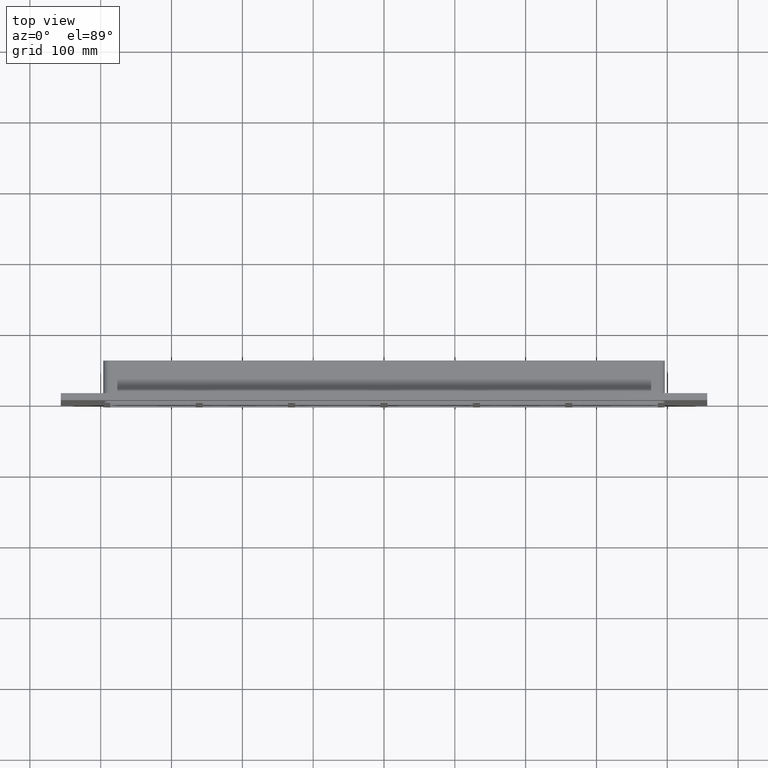
[diagram: clean part render]
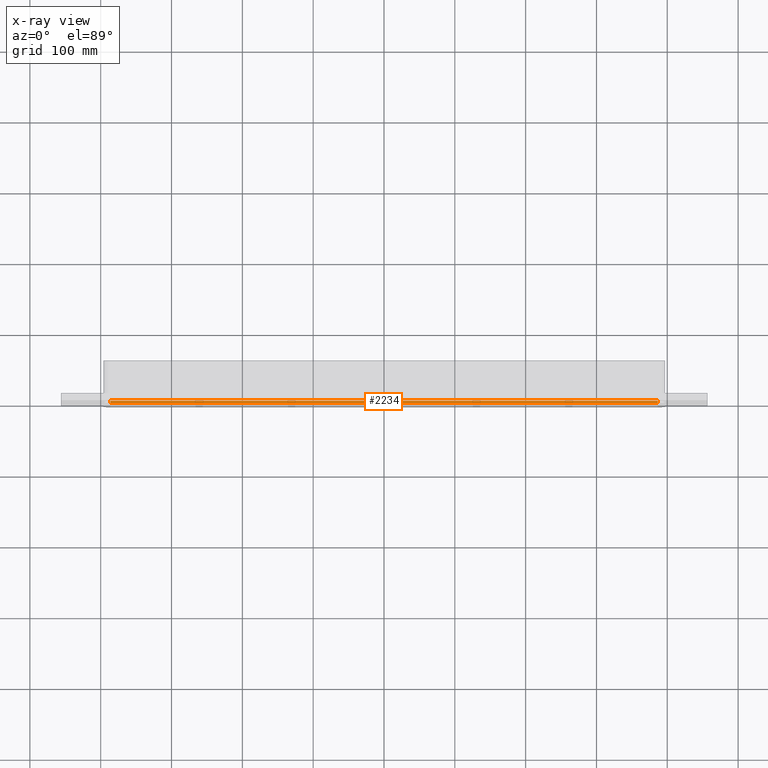
[diagram: x-ray — body ghosted, one internal face saturated and labeled with its STEP entity id]
A machine part, top view, then the same camera in x-ray: the body is ghosted and one INTERNAL B-rep face — a face not visible from any outside direction — is saturated and labeled: STEP entity #2234.
In plain terms, the highlighted planar face has unit normal (0, 0, 1).
Its self-contained STEP definition (entity closure, byte-faithful):
#860=CARTESIAN_POINT('',(386.50000000000006,-3.0,179.50000000000003));
#861=VERTEX_POINT('',#860);
#869=CARTESIAN_POINT('',(-386.50000000000006,-3.0,179.50000000000003));
#870=VERTEX_POINT('',#869);
#871=CARTESIAN_POINT('',(386.50000000000006,-3.0,179.50000000000003));
#872=DIRECTION('',(-1.0,0.0,0.0));
#873=VECTOR('',#872,773.00000000000011);
#874=LINE('',#871,#873);
#875=EDGE_CURVE('',#861,#870,#874,.T.);
#2008=CARTESIAN_POINT('',(-386.50000000000006,0.0,179.50000000000003));
#2009=VERTEX_POINT('',#2008);
#2017=CARTESIAN_POINT('',(386.50000000000006,0.0,179.50000000000003));
#2018=VERTEX_POINT('',#2017);
#2019=CARTESIAN_POINT('',(386.50000000000011,0.0,179.50000000000003));
#2020=DIRECTION('',(-1.0,0.0,0.0));
#2021=VECTOR('',#2020,773.00000000000023);
#2022=LINE('',#2019,#2021);
#2023=EDGE_CURVE('',#2018,#2009,#2022,.T.);
#2146=CARTESIAN_POINT('',(386.50000000000006,0.0,179.50000000000003));
#2147=DIRECTION('',(0.0,-1.0,0.0));
#2148=VECTOR('',#2147,3.0);
#2149=LINE('',#2146,#2148);
#2150=EDGE_CURVE('',#2018,#861,#2149,.T.);
#2218=CARTESIAN_POINT('',(-396.50000000000006,0.0,179.50000000000003));
#2219=DIRECTION('',(0.0,0.0,1.0));
#2220=DIRECTION('',(1.0,0.0,0.0));
#2221=AXIS2_PLACEMENT_3D('',#2218,#2219,#2220);
#2222=PLANE('',#2221);
#2223=ORIENTED_EDGE('',*,*,#2023,.T.);
#2224=CARTESIAN_POINT('',(-386.50000000000006,-3.0,179.50000000000003));
#2225=DIRECTION('',(0.0,1.0,0.0));
#2226=VECTOR('',#2225,3.0);
#2227=LINE('',#2224,#2226);
#2228=EDGE_CURVE('',#870,#2009,#2227,.T.);
#2229=ORIENTED_EDGE('',*,*,#2228,.F.);
#2230=ORIENTED_EDGE('',*,*,#875,.F.);
#2231=ORIENTED_EDGE('',*,*,#2150,.F.);
#2232=EDGE_LOOP('',(#2223,#2229,#2230,#2231));
#2233=FACE_OUTER_BOUND('',#2232,.T.);
#2234=ADVANCED_FACE('',(#2233),#2222,.T.);